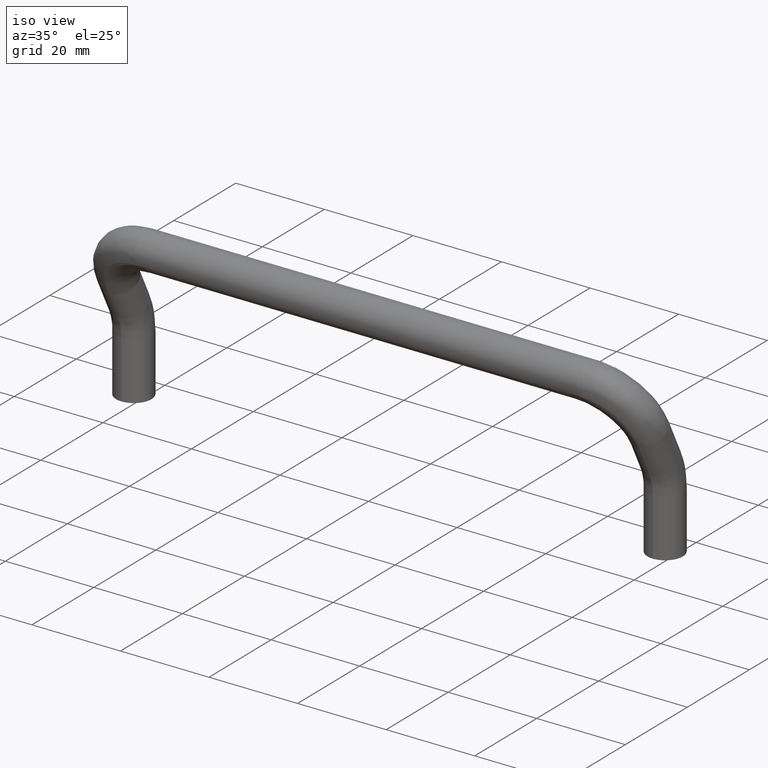
[diagram: clean part render]
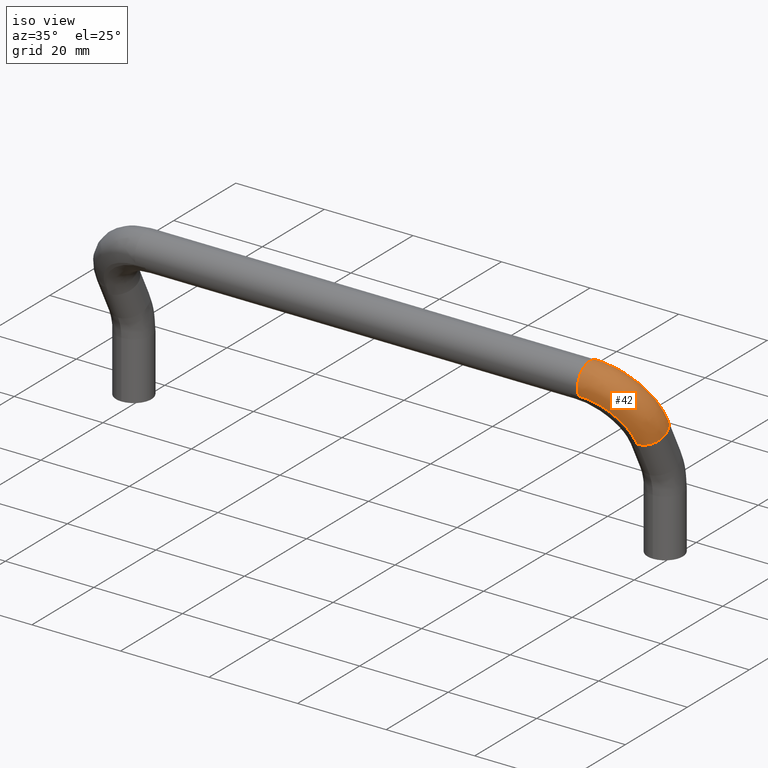
[diagram: same view with one face highlighted and labeled with its STEP entity id]
A machine part, iso view. The second image highlights one B-rep face of the part: STEP entity #42.
In plain terms, the highlighted face is a freeform B-spline surface patch.
Its self-contained STEP definition (entity closure, byte-faithful):
#42=ADVANCED_FACE('',(#92),#91,.T.);
#91=( BOUNDED_SURFACE() B_SPLINE_SURFACE( 2,2,((#383,#384,#385,#386,#387),(#388,#389,#390,#391,#392),(#393,#394,#395,#396,#397),(#398,#399,#400,#401,#402),(#403,#404,#405,#406,#407),(#408,#409,#410,#411,#412),(#413,#414,#415,#416,#417),(#418,#419,#420,#421,#422),(#423,#424,#425,#426,#427)), .UNSPECIFIED.,.F.,.F.,.F.) B_SPLINE_SURFACE_WITH_KNOTS((3,2,2,2,3),(3,2,3),(-1.57592718756E+00,-1.57079632679E+00,8.88178419700E-16,1.57079632679E+00,1.57592718756E+00),(1.56933036658E+00,1.57079632679E+00,3.14159265359E+00), .UNSPECIFIED. ) GEOMETRIC_REPRESENTATION_ITEM() RATIONAL_B_SPLINE_SURFACE(((9.97547694082E-01,9.97820008845E-01,9.98092832838E-01,7.05758210354E-01,9.98092832838E-01),(9.98497633541E-01,9.98770207622E-01,9.99043291419E-01,7.06430286061E-01,9.99043291419E-01),(9.99453819586E-01,9.99726654691E-01,1.00000000000E+00,7.07106781187E-01,1.00000000000E+00),(7.06720573312E-01,7.06913496865E-01,7.07106781187E-01,5.00000000000E-01,7.07106781187E-01),(9.99453819586E-01,9.99726654691E-01,1.00000000000E+00,7.07106781187E-01,1.00000000000E+00),(7.06720573312E-01,7.06913496865E-01,7.07106781187E-01,5.00000000000E-01,7.07106781187E-01),(9.99453819586E-01,9.99726654691E-01,1.00000000000E+00,7.07106781187E-01,1.00000000000E+00),(9.98497633541E-01,9.98770207622E-01,9.99043291419E-01,7.06430286061E-01,9.99043291419E-01),(9.97547694082E-01,9.97820008845E-01,9.98092832838E-01,7.05758210354E-01,9.98092832838E-01))) REPRESENTATION_ITEM('') SURFACE() );
#92=FACE_OUTER_BOUND('',#428,.T.);
#383=CARTESIAN_POINT('',(5.99814961153E+01,9.78560928339E-01,-6.73805379843E+00));
#384=CARTESIAN_POINT('',(5.99815048137E+01,9.75571533090E-01,-6.73218226771E+00));
#385=CARTESIAN_POINT('',(5.99815048137E+01,9.72582135236E-01,-6.72631073187E+00));
#386=CARTESIAN_POINT('',(5.99815048137E+01,-3.55616090455E+00,2.16868363709E+00));
#387=CARTESIAN_POINT('',(5.00000000001E+01,-3.55616090455E+00,2.16868363709E+00));
#388=CARTESIAN_POINT('',(5.99907436511E+01,9.78528362722E-01,-6.73808407844E+00));
#389=CARTESIAN_POINT('',(5.99907523575E+01,9.75536197895E-01,-6.73220710793E+00));
#390=CARTESIAN_POINT('',(5.99907523575E+01,9.72544030460E-01,-6.72633013230E+00));
#391=CARTESIAN_POINT('',(5.99907523575E+01,-3.56039474436E+00,2.17690516338E+00));
#392=CARTESIAN_POINT('',(5.00000000001E+01,-3.56039474436E+00,2.17690516338E+00));
#393=CARTESIAN_POINT('',(5.99999912856E+01,9.78533901942E-01,-6.73809495813E+00));
#394=CARTESIAN_POINT('',(6.00000000001E+01,9.75538967506E-01,-6.73221254778E+00));
#395=CARTESIAN_POINT('',(6.00000000001E+01,9.72544030460E-01,-6.72633013230E+00));
#396=CARTESIAN_POINT('',(6.00000000001E+01,-3.56459052425E+00,2.18514617820E+00));
#397=CARTESIAN_POINT('',(5.00000000001E+01,-3.56459052425E+00,2.18514617820E+00));
#398=CARTESIAN_POINT('',(6.39999877998E+01,9.80929850534E-01,-6.74280088846E+00));
#399=CARTESIAN_POINT('',(6.40000000001E+01,9.76736942324E-01,-6.73456551397E+00));
#400=CARTESIAN_POINT('',(6.40000000001E+01,9.72544030460E-01,-6.72633013230E+00));
#401=CARTESIAN_POINT('',(6.40000000001E+01,-5.37944434613E+00,5.74973670240E+00));
#402=CARTESIAN_POINT('',(5.00000000001E+01,-5.37944434613E+00,5.74973670240E+00));
#403=CARTESIAN_POINT('',(6.39999877998E+01,4.54552037473E+00,-4.92794706658E+00));
#404=CARTESIAN_POINT('',(6.40000000001E+01,4.54132746652E+00,-4.91971169209E+00));
#405=CARTESIAN_POINT('',(6.40000000001E+01,4.53713455466E+00,-4.91147631042E+00));
#406=CARTESIAN_POINT('',(6.40000000001E+01,-1.81485382194E+00,7.56459052428E+00));
#407=CARTESIAN_POINT('',(5.00000000001E+01,-1.81485382194E+00,7.56459052428E+00));
#408=CARTESIAN_POINT('',(6.39999877998E+01,8.11011089893E+00,-3.11309324470E+00));
#409=CARTESIAN_POINT('',(6.40000000001E+01,8.10591799072E+00,-3.10485787020E+00));
#410=CARTESIAN_POINT('',(6.40000000001E+01,8.10172507886E+00,-3.09662248853E+00));
#411=CARTESIAN_POINT('',(6.40000000001E+01,1.74973670226E+00,9.37944434617E+00));
#412=CARTESIAN_POINT('',(5.00000000001E+01,1.74973670226E+00,9.37944434617E+00));
#413=CARTESIAN_POINT('',(5.99999912856E+01,8.10771495034E+00,-3.10838731436E+00));
#414=CARTESIAN_POINT('',(6.00000000001E+01,8.10472001590E+00,-3.10250490401E+00));
#415=CARTESIAN_POINT('',(6.00000000001E+01,8.10172507886E+00,-3.09662248853E+00));
#416=CARTESIAN_POINT('',(6.00000000001E+01,3.56459052414E+00,5.81485382197E+00));
#417=CARTESIAN_POINT('',(5.00000000001E+01,3.56459052414E+00,5.81485382197E+00));
#418=CARTESIAN_POINT('',(5.99907436511E+01,8.10770941112E+00,-3.10837643467E+00));
#419=CARTESIAN_POINT('',(5.99907523575E+01,8.10471724629E+00,-3.10249946416E+00));
#420=CARTESIAN_POINT('',(5.99907523575E+01,8.10172507886E+00,-3.09662248853E+00));
#421=CARTESIAN_POINT('',(5.99907523575E+01,3.56878630403E+00,5.80661280715E+00));
#422=CARTESIAN_POINT('',(5.00000000001E+01,3.56878630403E+00,5.80661280715E+00));
#423=CARTESIAN_POINT('',(5.99814961153E+01,8.10766576718E+00,-3.10838495553E+00));
#424=CARTESIAN_POINT('',(5.99815048137E+01,8.10467637193E+00,-3.10251342481E+00));
#425=CARTESIAN_POINT('',(5.99815048137E+01,8.10168697408E+00,-3.09664188896E+00));
#426=CARTESIAN_POINT('',(5.99815048137E+01,3.57294393430E+00,5.79835248000E+00));
#427=CARTESIAN_POINT('',(5.00000000001E+01,3.57294393430E+00,5.79835248000E+00));
#428=EDGE_LOOP('',(#700,#701,#702,#703,#704,#705));
#700=ORIENTED_EDGE('',*,*,#848,.F.);
#701=ORIENTED_EDGE('',*,*,#849,.F.);
#702=ORIENTED_EDGE('',*,*,#850,.F.);
#703=ORIENTED_EDGE('',*,*,#851,.T.);
#704=ORIENTED_EDGE('',*,*,#852,.T.);
#705=ORIENTED_EDGE('',*,*,#846,.F.);
#846=EDGE_CURVE('',#950,#957,#958,.T.);
#848=EDGE_CURVE('',#970,#950,#971,.T.);
#849=EDGE_CURVE('',#977,#970,#978,.T.);
#850=EDGE_CURVE('',#984,#977,#985,.T.);
#851=EDGE_CURVE('',#984,#991,#992,.T.);
#852=EDGE_CURVE('',#991,#957,#998,.T.);
#950=VERTEX_POINT('',#1432);
#957=VERTEX_POINT('',#1436);
#958=CIRCLE('',#1440,1.00000000000E+01);
#970=VERTEX_POINT('',#1444);
#971=CIRCLE('',#1448,4.00000000000E+00);
#977=VERTEX_POINT('',#1449);
#978=CIRCLE('',#1453,4.00000000000E+00);
#984=VERTEX_POINT('',#1454);
#985=CIRCLE('',#1458,1.00000000000E+01);
#991=VERTEX_POINT('',#1459);
#992=CIRCLE('',#1463,4.00000000000E+00);
#998=CIRCLE('',#1467,4.00000000000E+00);
#1432=CARTESIAN_POINT('',(5.00000000001E+01,3.56459052417E+00,5.81485382196E+00));
#1436=CARTESIAN_POINT('',(6.00000000001E+01,8.10172507885E+00,-3.09662248855E+00));
#1437=CARTESIAN_POINT('',(5.00000000001E+01,8.10172507885E+00,-3.09662248855E+00));
#1438=DIRECTION('',(0.00000000000E+00,8.91147631051E-01,4.53713455468E-01));
#1439=DIRECTION('',(-0.00000000000E+00,4.53713455468E-01,-8.91147631051E-01));
#1440=AXIS2_PLACEMENT_3D('',#1437,#1438,#1439);
#1444=CARTESIAN_POINT('',(5.00000000001E+01,1.16973811745E-04,7.99999999837E+00));
#1445=CARTESIAN_POINT('',(5.00000000001E+01,-4.33537754307E-11,4.00000000008E+00));
#1446=DIRECTION('',(-1.00000000000E+00,1.57413412893E-15,-3.55271585154E-15));
#1447=DIRECTION('',(3.55271367880E-15,-1.38027852902E-06,-9.99999999999E-01));
#1448=AXIS2_PLACEMENT_3D('',#1445,#1446,#1447);
#1449=CARTESIAN_POINT('',(5.00000000001E+01,-3.56459052424E+00,2.18514617820E+00));
#1450=CARTESIAN_POINT('',(5.00000000001E+01,-4.33537754307E-11,4.00000000008E+00));
#1451=DIRECTION('',(-1.00000000000E+00,1.57413412893E-15,-3.55271585154E-15));
#1452=DIRECTION('',(3.55271367880E-15,-1.38027852902E-06,-9.99999999999E-01));
#1453=AXIS2_PLACEMENT_3D('',#1450,#1451,#1452);
#1454=CARTESIAN_POINT('',(6.00000000001E+01,9.72544030464E-01,-6.72633013229E+00));
#1455=CARTESIAN_POINT('',(5.00000000001E+01,9.72544030464E-01,-6.72633013229E+00));
#1456=DIRECTION('',(0.00000000000E+00,-8.91147631050E-01,-4.53713455470E-01));
#1457=DIRECTION('',(-1.00000000000E+00,-0.00000000000E+00,-0.00000000000E+00));
#1458=AXIS2_PLACEMENT_3D('',#1455,#1456,#1457);
#1459=CARTESIAN_POINT('',(6.01186649766E+01,9.74112948915E-01,-6.72553134274E+00));
#1460=CARTESIAN_POINT('',(6.00000000001E+01,4.53713455466E+00,-4.91147631041E+00));
#1461=DIRECTION('',(-9.83834228215E-17,-4.53713455470E-01,8.91147631050E-01));
#1462=DIRECTION('',(-0.00000000000E+00,8.91147631050E-01,4.53713455470E-01));
#1463=AXIS2_PLACEMENT_3D('',#1460,#1461,#1462);
#1464=CARTESIAN_POINT('',(6.00000000001E+01,4.53713455466E+00,-4.91147631041E+00));
#1465=DIRECTION('',(-9.83834228215E-17,-4.53713455470E-01,8.91147631050E-01));
#1466=DIRECTION('',(-0.00000000000E+00,8.91147631050E-01,4.53713455470E-01));
#1467=AXIS2_PLACEMENT_3D('',#1464,#1465,#1466);